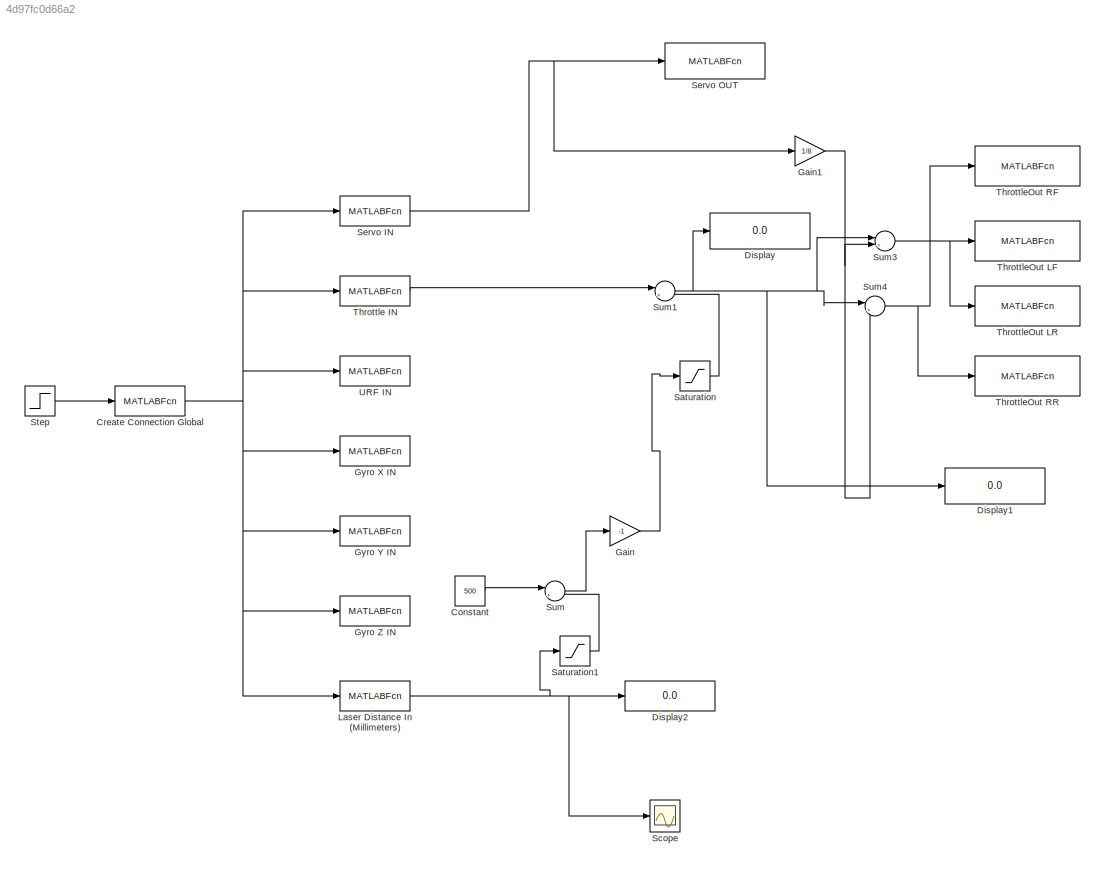
MODEL slx_4d97fc0d66a2
KIND model
CONFIG AbsTol = auto
CONFIG FixedStep = 0.02
CONFIG MaxStep = auto
CONFIG MinStep = auto
CONFIG RelTol = 1e-3
CONFIG SampleTimeConstraint = Unconstrained
CONFIG Solver = FixedStepAuto
CONFIG SolverMode = SingleTasking
CONFIG SolverName = FixedStepAuto
CONFIG StartFcn = setupPi
CONFIG StartTime = 0.0
CONFIG StopTime = inf
BLOCK [Constant] Constant
  Value = 500
BLOCK [MATLABFcn] Create Connection Global
  MATLABFcn = createMyConnection
  Ports = [1, 1]
BLOCK [Display] Display
  Decimation = 1
  Ports = [1]
BLOCK [Display] Display1
  Decimation = 1
  Ports = [1]
BLOCK [Display] Display2
  Decimation = 1
  Ports = [1]
BLOCK [Gain] Gain
  Gain = -1
  OutDataTypeStr = Inherit: Inherit via internal rule
  ParamDataTypeStr = Inherit: Inherit via internal rule
  SaturateOnIntegerOverflow = off
BLOCK [Gain] Gain1
  Gain = 1/8
  OutDataTypeStr = Inherit: Inherit via internal rule
  ParamDataTypeStr = Inherit: Inherit via internal rule
  SaturateOnIntegerOverflow = off
BLOCK [MATLABFcn] Gyro X IN
  MATLABFcn = readGyroXInput
  Ports = [1, 1]
BLOCK [MATLABFcn] Gyro Y IN
  MATLABFcn = readGyroYInput
  Ports = [1, 1]
BLOCK [MATLABFcn] Gyro Z IN
  MATLABFcn = readGyroZInput
  Ports = [1, 1]
BLOCK [MATLABFcn] Laser Distance In (Millimeters)
  MATLABFcn = readLaser
  Ports = [1, 1]
BLOCK [Saturate] Saturation
  InputPortMap = u0
  LowerLimit = -500
  Ports = [1, 1]
  UpperLimit = 100
BLOCK [Saturate] Saturation1
  InputPortMap = u0
  LowerLimit = 0
  Ports = [1, 1]
  UpperLimit = 500
BLOCK [Scope] Scope
  NumInputPorts = 1
  Ports = [1]
  ScopeSpecificationString = Simulink.scopes.TimeScopeBlockCfg('CurrentConfiguration', extmgr.ConfigurationSet(extmgr.Configuration('Core','General UI',true),extmgr.Configuration('Core','Source UI',true),extmgr.Configuration('Sources','WiredSimulink',true),extmgr.Configuration('Visuals','Time Domain',true,'SerializedDisplays',{struct('MinYLimReal','-1023.875','MaxYLimReal','9214.875','YLabelReal','','MinYLimMag','  0.00000','...<+1330ch>
BLOCK [MATLABFcn] Servo IN 
  MATLABFcn = readServoInput
  OutputSignalType = real
  Ports = [1, 1]
BLOCK [MATLABFcn] Servo OUT
  MATLABFcn = sendServoOut
  OutputDimensions = 0
  Ports = [1]
BLOCK [Step] Step
  SampleTime = .02
BLOCK [Sum] Sum
  IconShape = round
  InputSameDT = off
  Inputs = |+-
  OutDataTypeStr = Inherit: Inherit via internal rule
  Ports = [2, 1]
  SaturateOnIntegerOverflow = off
BLOCK [Sum] Sum1
  IconShape = round
  InputSameDT = off
  Inputs = |++
  OutDataTypeStr = Inherit: Inherit via internal rule
  Ports = [2, 1]
  SaturateOnIntegerOverflow = off
BLOCK [Sum] Sum3
  IconShape = round
  InputSameDT = off
  Inputs = |++
  OutDataTypeStr = Inherit: Inherit via internal rule
  Ports = [2, 1]
  SaturateOnIntegerOverflow = off
BLOCK [Sum] Sum4
  IconShape = round
  InputSameDT = off
  Inputs = |+-
  OutDataTypeStr = Inherit: Inherit via internal rule
  Ports = [2, 1]
  SaturateOnIntegerOverflow = off
BLOCK [MATLABFcn] Throttle IN
  MATLABFcn = readThrottleInput
  Ports = [1, 1]
BLOCK [MATLABFcn] ThrottleOut LF
  MATLABFcn = sendThrottleLeftFront
  OutputDimensions = 0
  Ports = [1]
BLOCK [MATLABFcn] ThrottleOut LR
  MATLABFcn = sendThrottleLeftRear
  OutputDimensions = 0
  Ports = [1]
BLOCK [MATLABFcn] ThrottleOut RF
  MATLABFcn = sendThrottleRightFront
  OutputDimensions = 0
  Ports = [1]
BLOCK [MATLABFcn] ThrottleOut RR
  MATLABFcn = sendThrottleRightRear
  OutputDimensions = 0
  Ports = [1]
BLOCK [MATLABFcn] URF IN
  MATLABFcn = readURFInput
  Ports = [1, 1]
LINE Constant:1 -> Sum:1
NET Create Connection Global:1 -> Gyro X IN:1, Gyro Y IN:1, Gyro Z IN:1, Laser Distance In (Millimeters):1, Servo IN :1, Throttle IN:1, URF IN:1
NET Gain1:1 -> Sum3:2, Sum4:2
LINE Gain:1 -> Saturation:1
NET Laser Distance In (Millimeters):1 -> Display2:1, Saturation1:1, Scope:1
LINE Saturation1:1 -> Sum:2
LINE Saturation:1 -> Sum1:2
NET Servo IN :1 -> Gain1:1, Servo OUT:1
LINE Step:1 -> Create Connection Global:1
NET Sum1:1 -> Display1:1, Display:1, Sum3:1, Sum4:1
NET Sum3:1 -> ThrottleOut LF:1, ThrottleOut LR:1
NET Sum4:1 -> ThrottleOut RF:1, ThrottleOut RR:1
LINE Sum:1 -> Gain:1
LINE Throttle IN:1 -> Sum1:1
note: NET lines group one-source signal fan-out (src -> all destinations, sorted); 1:1 wires keep LINE
